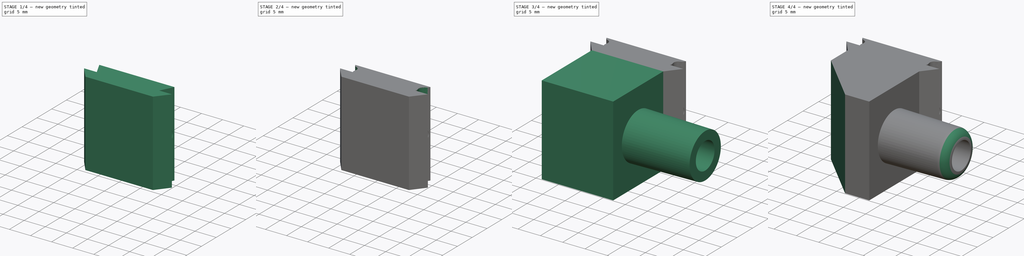
[diagram: build sequence overview — one tinted view per stage of 4, left to right]
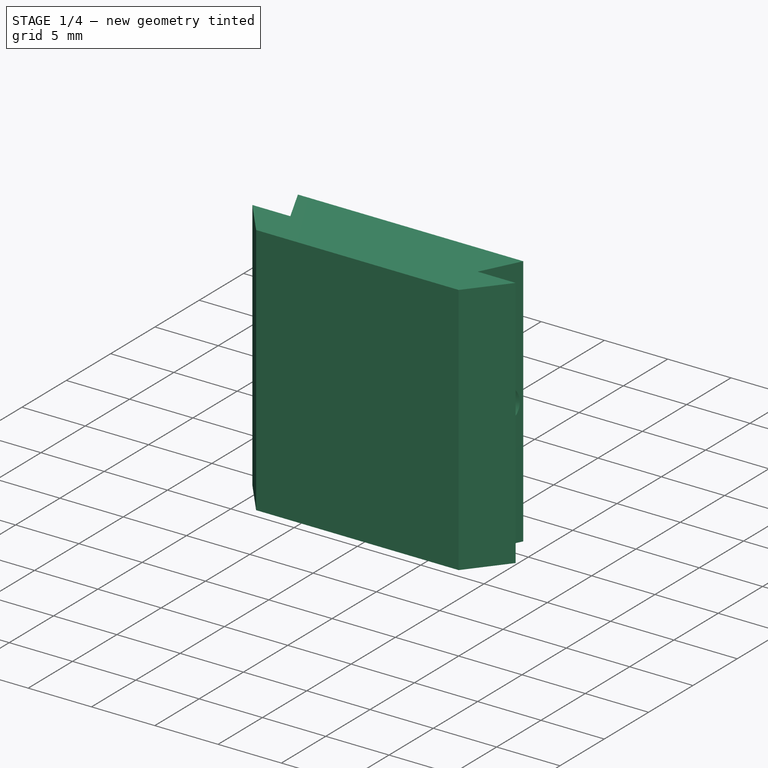
[diagram: stage 1 of 4 — iso view after this stage's code; geometry added in this stage tinted green]
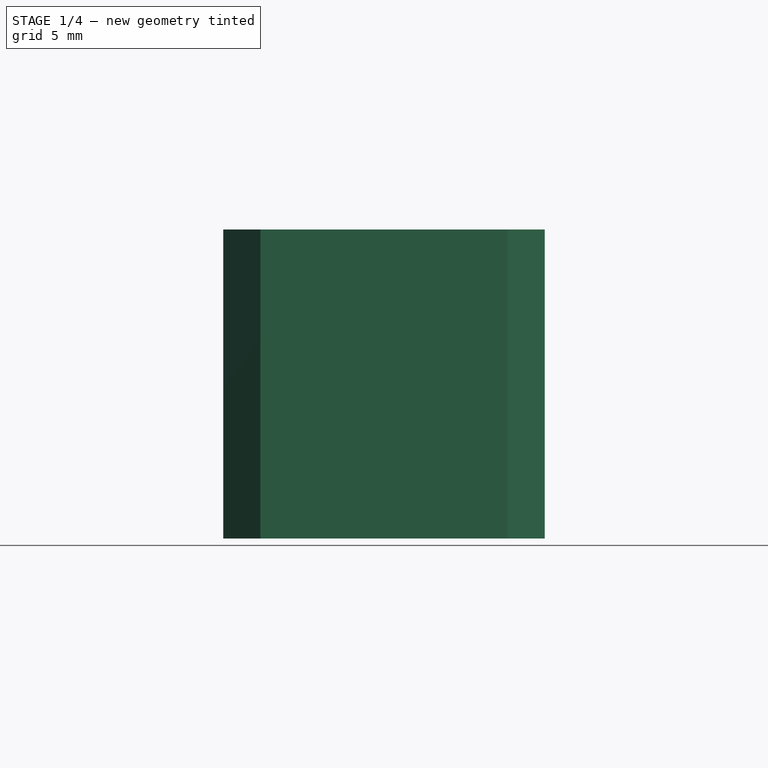
[diagram: stage 1 of 4 — front view after this stage's code; geometry added in this stage tinted green]
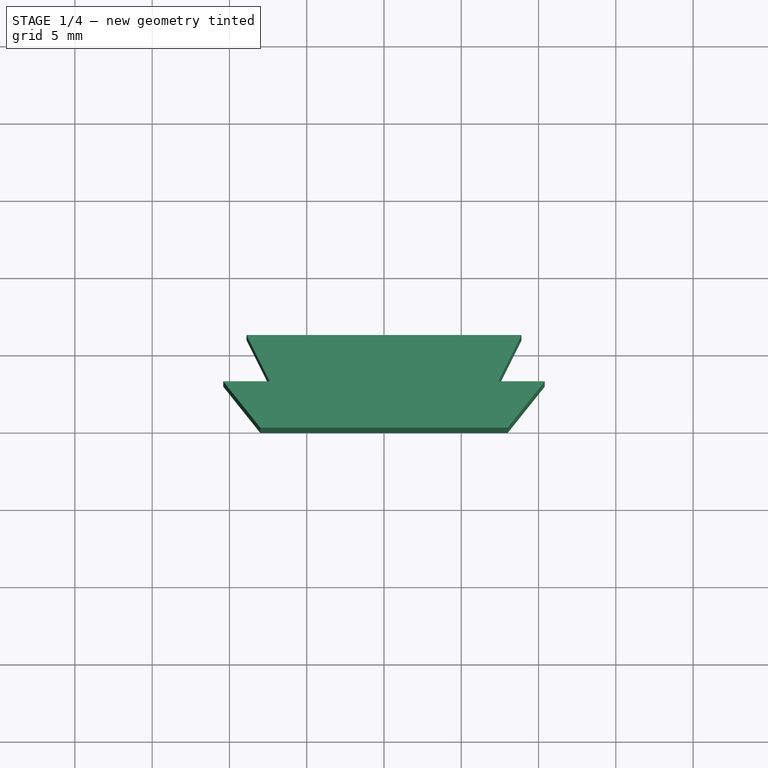
[diagram: stage 1 of 4 — top view after this stage's code; geometry added in this stage tinted green]
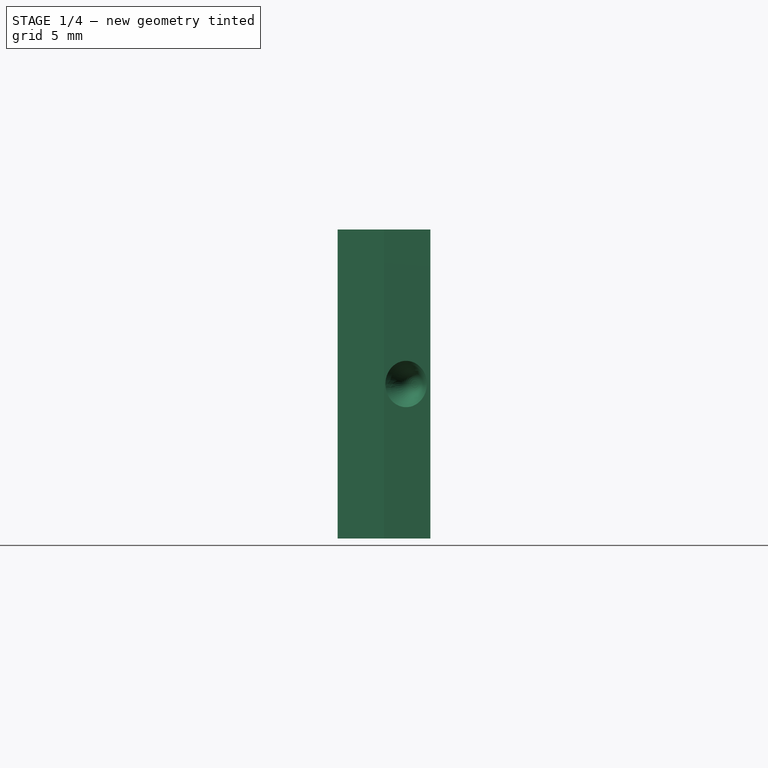
[diagram: stage 1 of 4 — right view after this stage's code; geometry added in this stage tinted green]
FCSTD DOCUMENT  (FreeCAD 0.18R16146 (Git))
Label: V2_Connector_90deg_tube_10mm
License: All rights reserved
LicenseURL: http://en.wikipedia.org/wiki/All_rights_reserved
objects: Sketcher::SketchObject×8, PartDesign::Plane×3, PartDesign::Pad×2, PartDesign::Mirrored×2, PartDesign::Pocket×2, PartDesign::Groove×1, PartDesign::SubtractivePipe×1, PartDesign::Line×1, PartDesign::Revolution×1, PartDesign::Fillet×1, PartDesign::Body×1
note: 30 computed .brp shape members not serialized (recipe doc carries the construction recipe); baked Part::Feature solids carry a one-line shape summary decoded from their .brp

FEATURE [Sketcher::SketchObject] Sketch004
  MapMode = 5
  Support = -> [XY_Plane001]
  sketch-geometry (8):
    g0: LineSegment StartX=-8.9 StartY=3 StartZ=0 EndX=-7.4 EndY=0 EndZ=0
    g1: LineSegment StartX=7.4 StartY=-1e-16 StartZ=0 EndX=8.9 EndY=3 EndZ=0
    g2: LineSegment StartX=8.9 StartY=3 StartZ=0 EndX=-8.9 EndY=3 EndZ=0
    g3: LineSegment StartX=-7.4 StartY=-2e-16 StartZ=0 EndX=-10.4 EndY=-2e-16 EndZ=0
    g4: LineSegment StartX=-10.4 StartY=-2e-16 StartZ=0 EndX=-8 EndY=-3 EndZ=0
    g5: LineSegment StartX=-8 StartY=-3 StartZ=0 EndX=8 EndY=-3 EndZ=0
    g6: LineSegment StartX=8 StartY=-3 StartZ=0 EndX=10.4 EndY=0 EndZ=0
    g7: LineSegment StartX=10.4 StartY=-1e-16 StartZ=0 EndX=7.4 EndY=-1e-16 EndZ=0
  constraints (23):
    c: Coincident(g1,g2)
    c: Coincident(g2,g0)
    c: DistanceX(g2,g2) = 17.8
    c: DistanceX(g0,g1) = 14.8
    c: Equal(g0,g1)
    c: DistanceY(g1,g1) = 3
    c: Symmetric(g0,g1,g-2)
    c: Coincident(g0,g3)
    c: Horizontal(g3)
    c: Coincident(g3,g4)
    c: Coincident(g4,g5)
    c: Horizontal(g5)
    c: Coincident(g5,g6)
    c: Coincident(g6,g7)
    c: Coincident(g7,g1)
    c: Horizontal(g7)
    c: DistanceX(g5,g5) = 16
    c: DistanceY(g4,g0) = 3
    c: DistanceY(g0,g0) = 3
    c: Equal(g6,g4)
    c: Equal(g3,g7)
    c: DistanceX(g3,g3) = 3
    c: DistanceY(g-1,g1) = 3
FEATURE [PartDesign::Pad] Pad001
  Length = 20
  Length2 = 100
  Profile = -> Sketch004
  Type = 0
FEATURE [PartDesign::Plane] DatumPlane002
  AttachmentOffset = pos=(0,10,0) rot=(1,0,0;1.5708rad)
  Length = 51.3037
  MapMode = 5
  Placement = pos=(6.72,-3.36,10) rot=(0.850651,0.525731,0;3.14159rad)
  ResizeMode = 0
  Support = -> [Pad001]
  Width = 52.377
FEATURE [Sketcher::SketchObject] Sketch005
  ExternalGeometry = -> [Pad001]
  MapMode = 5
  Placement = pos=(6.72,-3.36,10) rot=(0.850651,0.525731,0;3.14159rad)
  Support = -> [DatumPlane002]
  sketch-geometry (9):
    g0: LineSegment StartX=1.62053 StartY=-4.4e-15 StartZ=0 EndX=3.12053 EndY=-4.4e-15 EndZ=0
    g1: LineSegment StartX=3.12053 StartY=-4.4e-15 StartZ=0 EndX=3.12053 EndY=-1.3 EndZ=0
    g2-g5: Circle [constr] x4 (B-spline internal-alignment scaffolding for g6; pole/knot coordinates omitted)
    g6: BSplineCurve PolesCount=4 KnotsCount=2 Degree=3 IsPeriodic=0
    g7: GeomPoint [constr] X=3.12053 Y=-1.3 Z=0
    g8: GeomPoint [constr] X=1.62053 Y=-4.4e-15 Z=0
  constraints (20):
    c: Horizontal(g0)
    c: Coincident(g0,g1)
    c: Vertical(g1)
    c: DistanceY(g1,g1) = 1.3
    c: DistanceX(g0,g0) = 1.5
    c: DistanceX(g-3,g0) = 1.6
    c: DistanceY(g0,g-3) = 0
    c: Coincident(g6,g1)
    c: Radius(g2) = 0.1
    c: Equal(g2,g3)
    c: Equal(g2,g4)
    c: Equal(g2,g5)
    c: Coincident(g6,g0)
    c: InternalAlignment(g2-g5 -> g6) x4
    c: InternalAlignment(g7,g6)
    c: InternalAlignment(g8,g6)
    c: Horizontal(g3,g1)
    c: Vertical(g3,g4)
    c: DistanceY(g3,g4) = 0.6
    c: DistanceX(g4,g0) = 0.75
FEATURE [PartDesign::Groove] Groove
  Angle = 360
  Axis = (-0.894427,0.447214,-2e-16)
  Base = (8.11554,-0.568916,10)
  BaseFeature = -> Pad001
  Profile = -> Sketch005
  ReferenceAxis = -> Sketch005 [Edge2]
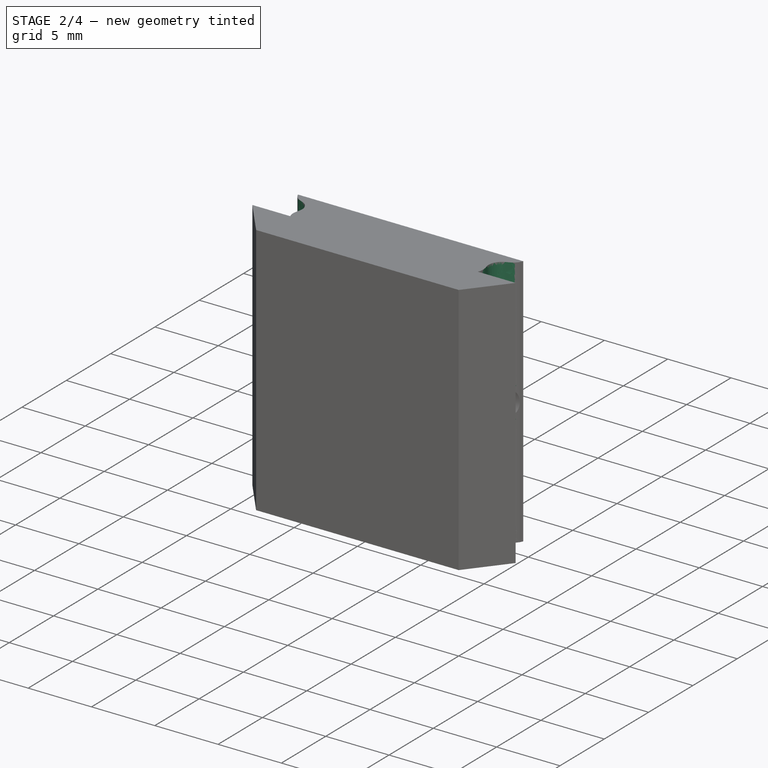
[diagram: stage 2 of 4 — iso view after this stage's code; geometry added in this stage tinted green]
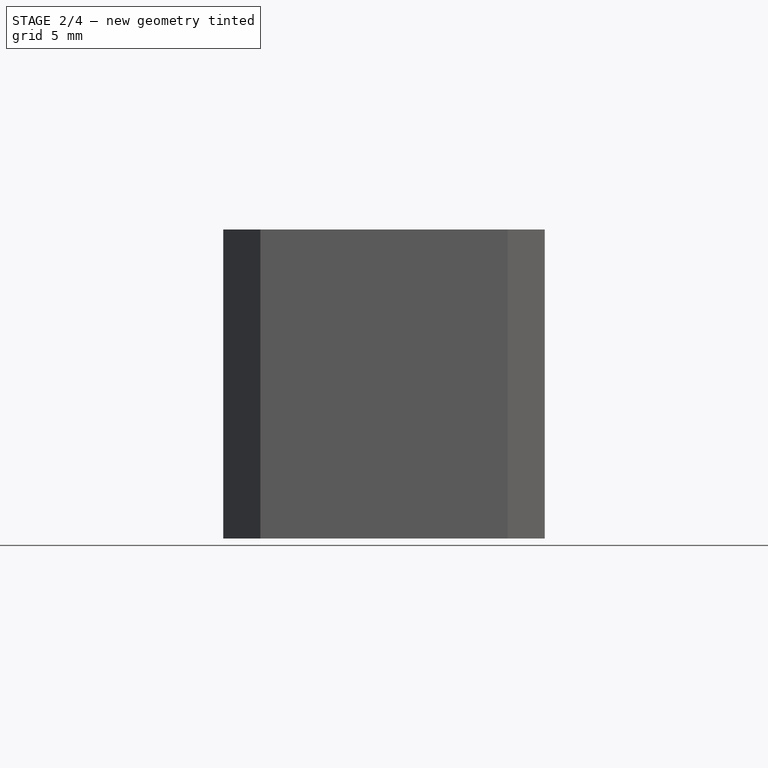
[diagram: stage 2 of 4 — front view after this stage's code; geometry added in this stage tinted green]
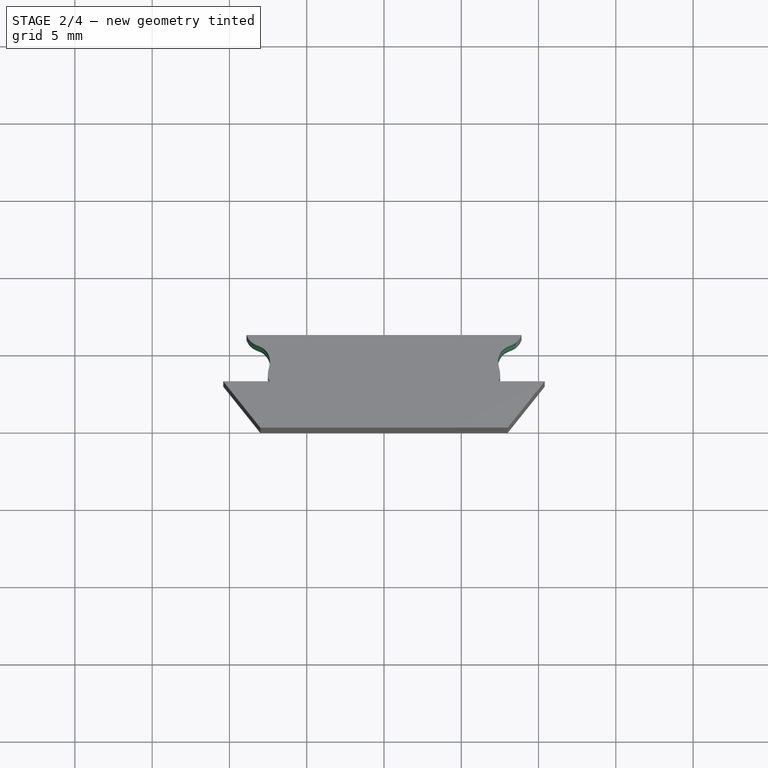
[diagram: stage 2 of 4 — top view after this stage's code; geometry added in this stage tinted green]
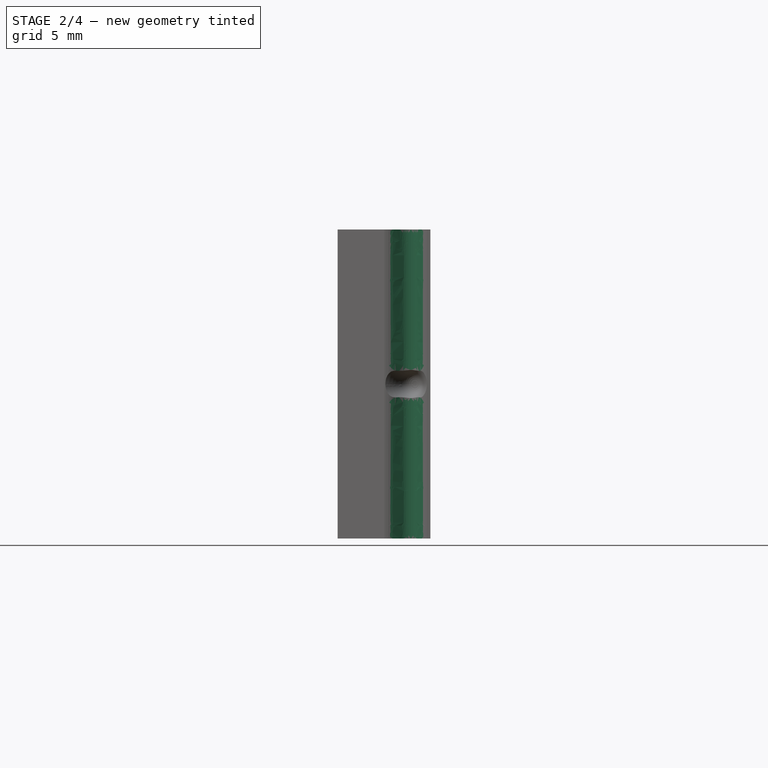
[diagram: stage 2 of 4 — right view after this stage's code; geometry added in this stage tinted green]
FEATURE [PartDesign::Mirrored] Mirrored
  BaseFeature = -> Groove
  MirrorPlane = -> YZ_Plane001
  Originals = -> [Groove]
FEATURE [PartDesign::Plane] DatumPlane003
  AttachmentOffset = pos=(0,0,0) rot=(1,0,0;1.5708rad)
  Length = 51.3037
  MapMode = 5
  Placement = pos=(-6.72,-3.36,0) rot=(0.850651,-0.525731,0;3.14159rad)
  ResizeMode = 0
  Support = -> [Mirrored]
  Width = 52.377
FEATURE [Sketcher::SketchObject] Sketch007
  ExternalGeometry = -> [Mirrored]
  MapMode = 5
  Placement = pos=(-6.72,-3.36,0) rot=(0.850651,-0.525731,0;3.14159rad)
  Support = -> [DatumPlane003]
  sketch-geometry (16):
    g0: LineSegment StartX=-4.62053 StartY=-3.6e-15 StartZ=0 EndX=-3.12053 EndY=-3.6e-15 EndZ=0
    g1: LineSegment StartX=-3.12053 StartY=-3.6e-15 StartZ=0 EndX=-1.62053 EndY=-3.6e-15 EndZ=0
    g2-g5: Circle [constr] x4 (B-spline internal-alignment scaffolding for g6; pole/knot coordinates omitted)
    g6: BSplineCurve PolesCount=4 KnotsCount=2 Degree=3 IsPeriodic=0
    g7: GeomPoint [constr] X=-3.12053 Y=-0.7 Z=0
    g8: GeomPoint [constr] X=-4.62053 Y=-3.6e-15 Z=0
    g9-g12: Circle [constr] x4 (B-spline internal-alignment scaffolding for g13; pole/knot coordinates omitted)
    g13: BSplineCurve PolesCount=4 KnotsCount=2 Degree=3 IsPeriodic=0
    g14: GeomPoint [constr] X=-3.12053 Y=-0.7 Z=0
    g15: GeomPoint [constr] X=-1.62053 Y=-3.6e-15 Z=0
  constraints (34):
    c: Horizontal(g0)
    c: Horizontal(g1)
    c: DistanceY(g6,g0) = 0.7
    c: Radius(g2) = 0.1
    c: Equal(g2,g3)
    c: Equal(g2,g4)
    c: Equal(g2,g5)
    c: Coincident(g6,g0)
    c: InternalAlignment(g2-g5 -> g6) x4
    c: InternalAlignment(g7,g6)
    c: InternalAlignment(g8,g6)
    c: Horizontal(g3,g6)
    c: Vertical(g3,g4)
    c: DistanceY(g3,g4) = 0.6
    c: DistanceX(g4,g0) = 0.75
    c: Radius(g9) = 0.09
    c: Equal(g9,g10)
    c: Equal(g9,g11)
    c: Equal(g9,g12)
    c: Coincident(g13,g1)
    c: InternalAlignment(g9-g12 -> g13) x4
    c: InternalAlignment(g14,g13)
    c: InternalAlignment(g15,g13)
    c: Horizontal(g6,g10)
    c: Vertical(g11,g10)
    c: Horizontal(g11,g4)
    c: DistanceX(g0,g11) = 0.75
    c: DistanceX(g0,g-3) = 1.6
    c: DistanceY(g-3,g0) = 0
    c: Coincident(g6,g13)
    c: DistanceX(g0,g0) = 1.5
    c: Equal(g0,g1)
    c: DistanceX(g0,g6) = 1.5
    c: Coincident(g1,g0)
FEATURE [PartDesign::Pocket] Pocket001
  BaseFeature = -> Mirrored
  Length = 5
  Length2 = 100
  Profile = -> Sketch007
  Type = 1
FEATURE [PartDesign::Mirrored] Mirrored003
  BaseFeature = -> Pocket001
  MirrorPlane = -> YZ_Plane001
  Originals = -> [Pocket001]
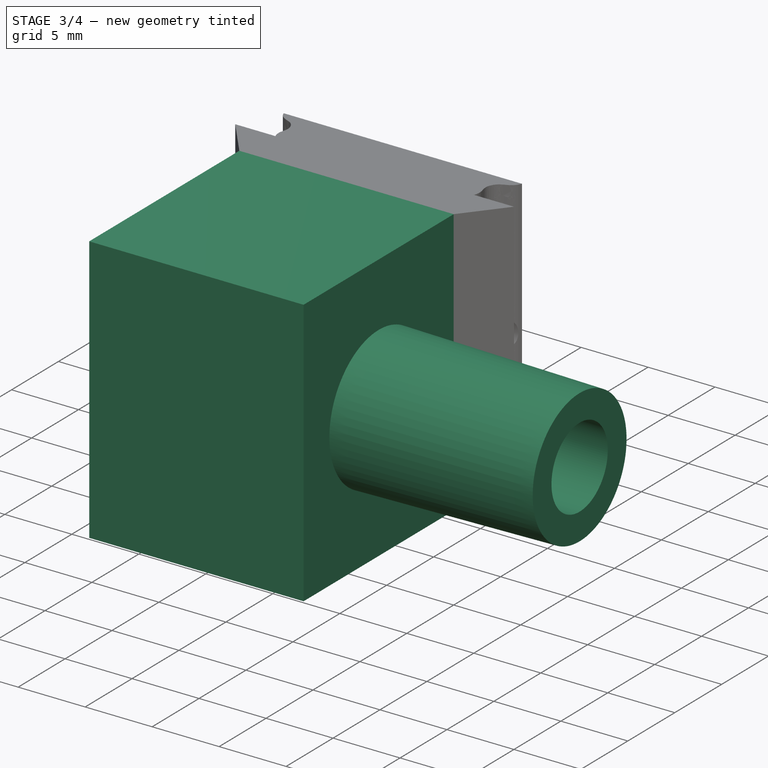
[diagram: stage 3 of 4 — iso view after this stage's code; geometry added in this stage tinted green]
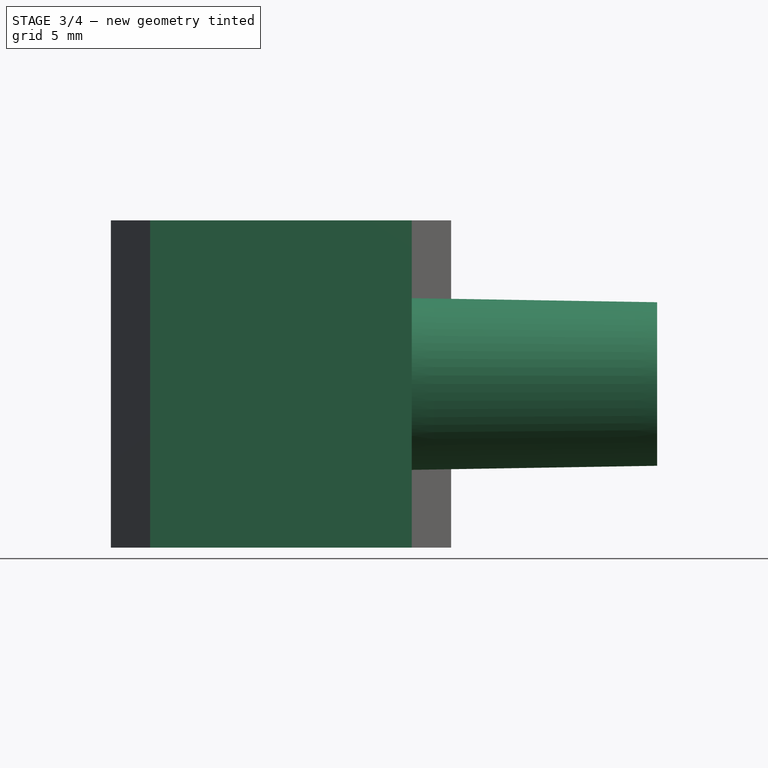
[diagram: stage 3 of 4 — front view after this stage's code; geometry added in this stage tinted green]
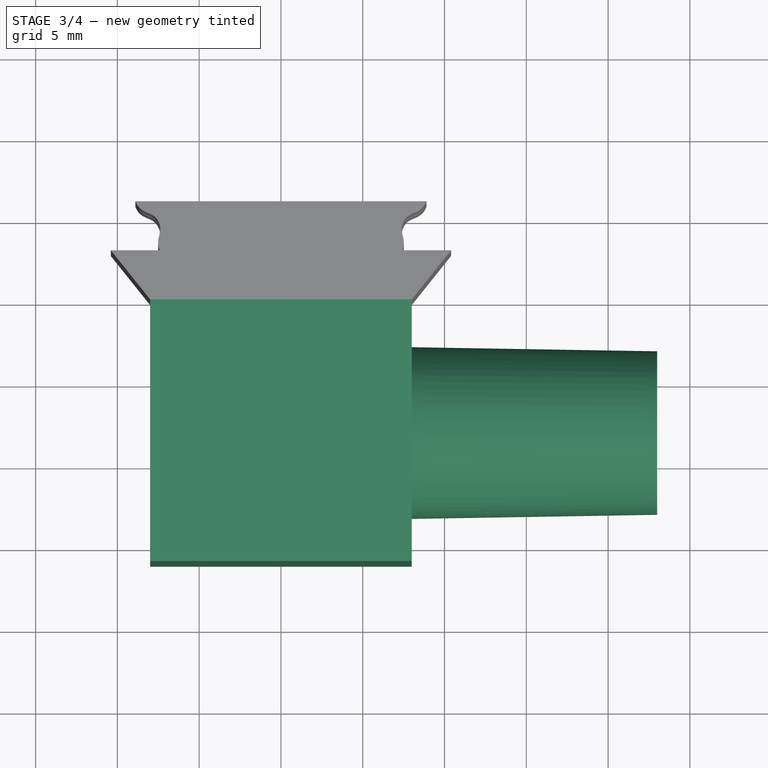
[diagram: stage 3 of 4 — top view after this stage's code; geometry added in this stage tinted green]
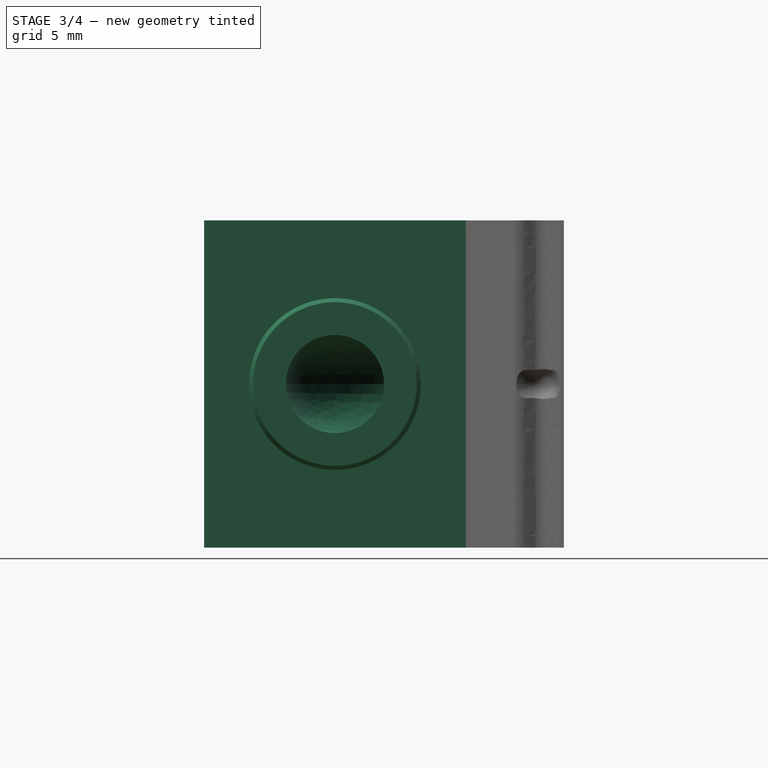
[diagram: stage 3 of 4 — right view after this stage's code; geometry added in this stage tinted green]
FEATURE [PartDesign::Pad] Pad002
  BaseFeature = -> Mirrored003
  Length = 16
  Length2 = 100
  Profile = -> Mirrored003 [Face13]
  Type = 0
FEATURE [Sketcher::SketchObject] Sketch008
  MapMode = 5
  Placement = pos=(0,1,0) rot=(0,0.707107,0.707107;3.14159rad)
  Support = -> [Pad002]
  sketch-geometry (1):
    g0: Circle CenterX=0 CenterY=10 CenterZ=0 NormalX=0 NormalY=0 NormalZ=1 AngleXU=0 Radius=5
  constraints (3):
    c: Radius(g0) = 5
    c: PointOnObject(g0,g-2)
    c: DistanceY(g0) = 10
FEATURE [Sketcher::SketchObject] Sketch009
  MapMode = 5
  Placement = pos=(8,0,0) rot=(0.57735,0.57735,0.57735;2.0944rad)
  Support = -> [Pad002]
  sketch-geometry (1):
    g0: Circle CenterX=-13 CenterY=10 CenterZ=0 NormalX=0 NormalY=0 NormalZ=1 AngleXU=0 Radius=3
  constraints (3):
    c: Radius(g0) = 3
    c: DistanceY(g-1,g0) = 10
    c: DistanceX(g0,g-1) = 13
FEATURE [Sketcher::SketchObject] Sketch010
  MapMode = 5
  Placement = pos=(0,0,20) rot=(0,0,1;0rad)
  Support = -> [Pad002]
  sketch-geometry (2):
    g0: ArcOfCircle CenterX=8 CenterY=-5 CenterZ=0 NormalX=0 NormalY=0 NormalZ=1 AngleXU=0 Radius=8 StartAngle=3.14159 EndAngle=4.71239
    g1: LineSegment StartX=0 StartY=-5 StartZ=0 EndX=0 EndY=1 EndZ=0
  constraints (8):
    c: Coincident(g1,g0)
    c: DistanceY(g0,g-1) = 5
    c: PointOnObject(g1,g-2)
    c: Vertical(g1)
    c: DistanceY(g-1,g1) = 1
    c: DistanceY(g1,g1) = 6
    c: DistanceY(g0,g0) = 8
    c: DistanceX(g0) = 8
FEATURE [PartDesign::SubtractivePipe] SubtractivePipe
  AuxilleryCurvelinear = true
  AuxillerySpineTangent = false
  BaseFeature = -> Pad002
  Binormal = (0,0,0)
  Mode = 0
  Profile = -> Sketch008
  Sections = -> [Sketch009]
  Spine = -> Sketch010
  SpineTangent = false
  Transformation = 1
  Transition = 0
FEATURE [PartDesign::Plane] DatumPlane004
  AttachmentOffset = pos=(0,10,0) rot=(1,0,0;1.5708rad)
  Length = 37.4355
  MapMode = 5
  Placement = pos=(8,0,10) rot=(0.707107,0.707107,0;3.14159rad)
  ResizeMode = 0
  Support = -> [SubtractivePipe]
  Width = 39.8355
FEATURE [Sketcher::SketchObject] Sketch011
  MapMode = 5
  Placement = pos=(8,0,10) rot=(0.707107,0.707107,0;3.14159rad)
  Support = -> [DatumPlane004]
  sketch-geometry (4):
    g0: LineSegment StartX=-18.25 StartY=0 StartZ=0 EndX=-16 EndY=0 EndZ=0
    g1: LineSegment StartX=-16 StartY=0 StartZ=0 EndX=-16 EndY=15 EndZ=0
    g2: LineSegment StartX=-16 StartY=15 StartZ=0 EndX=-18 EndY=15 EndZ=0
    g3: LineSegment StartX=-18 StartY=15 StartZ=0 EndX=-18.25 EndY=0 EndZ=0
  constraints (12):
    c: Coincident(g0,g1)
    c: Coincident(g1,g2)
    c: Coincident(g2,g3)
    c: Coincident(g3,g0)
    c: Horizontal(g0)
    c: Horizontal(g2)
    c: DistanceX(g0,g0) = 2.25
    c: Vertical(g1)
    c: DistanceX(g2,g2) = 2
    c: DistanceY(g1,g1) = 15
    c: DistanceX(g0) = -16
    c: DistanceY(g0) = 0
FEATURE [PartDesign::Line] DatumLine
  AttacherType = Attacher::AttachEngineLine
  AttachmentOffset = pos=(0,0,-13) rot=(0,1,0;1.5708rad)
  MapMode = 16
  Placement = pos=(8,-13,10) rot=(-0.57735,0.57735,-0.57735;2.0944rad)
  Support = -> [DatumPlane004]
FEATURE [PartDesign::Revolution] Revolution001
  Angle = 360
  Axis = (1,2e-16,2e-16)
  Base = (8,-13,10)
  BaseFeature = -> SubtractivePipe
  Profile = -> Sketch011
  ReferenceAxis = -> DatumLine
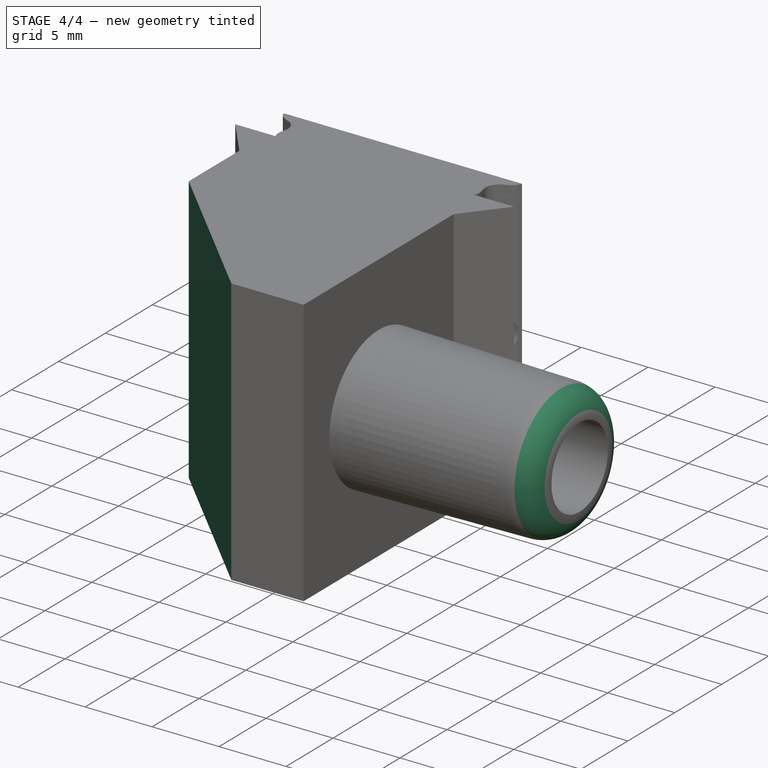
[diagram: stage 4 of 4 — iso view after this stage's code; geometry added in this stage tinted green]
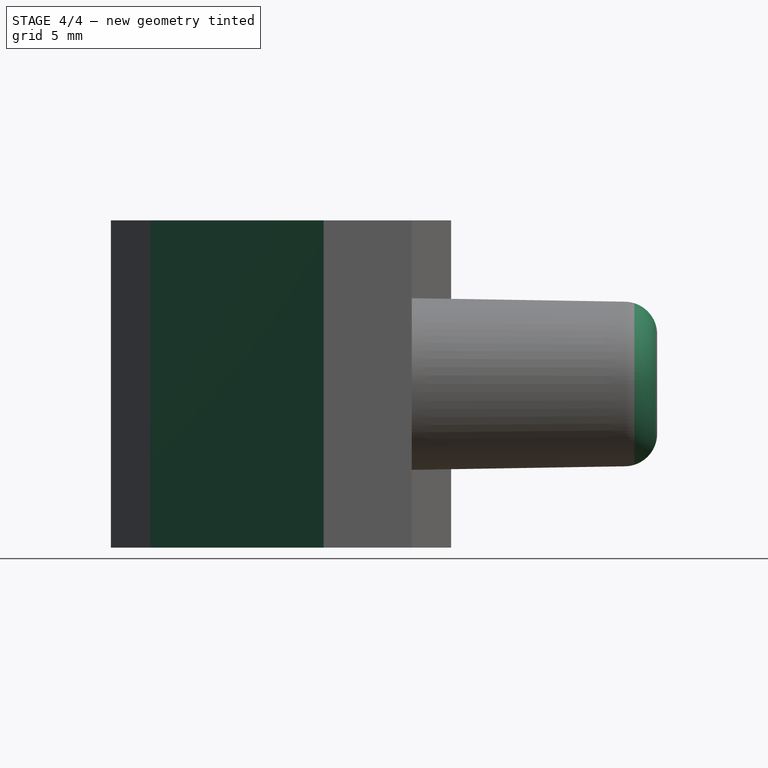
[diagram: stage 4 of 4 — front view after this stage's code; geometry added in this stage tinted green]
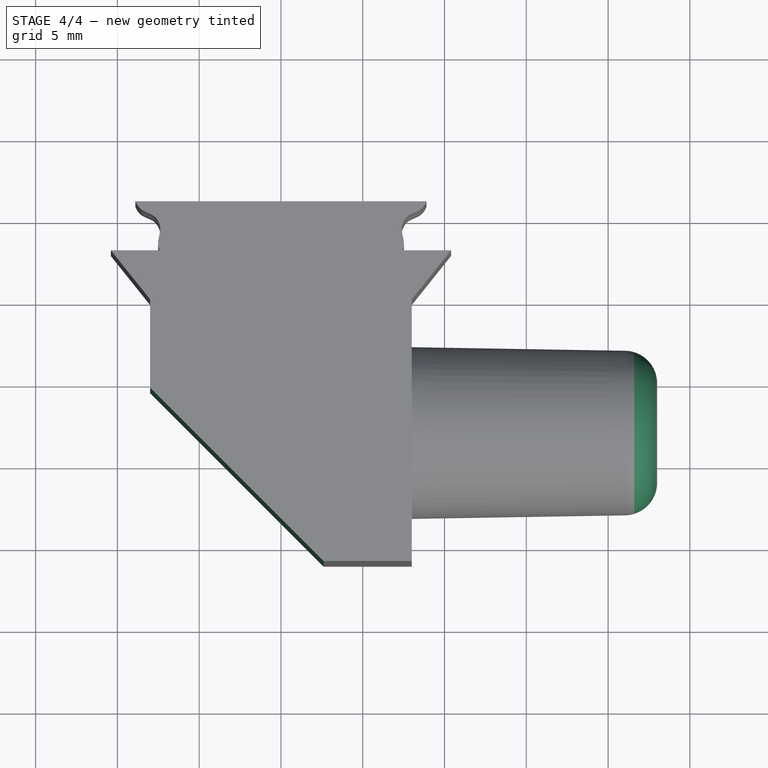
[diagram: stage 4 of 4 — top view after this stage's code; geometry added in this stage tinted green]
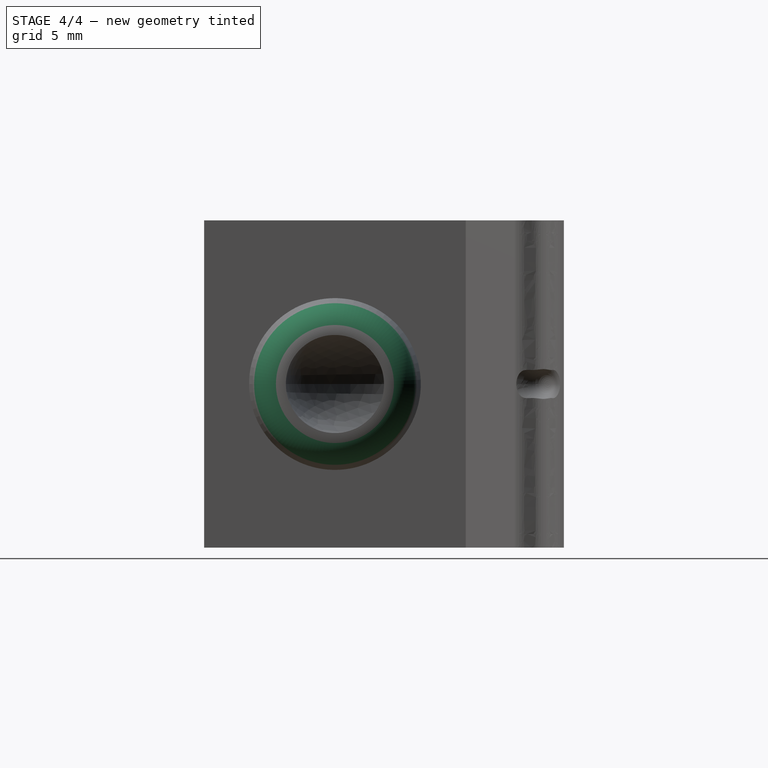
[diagram: stage 4 of 4 — right view after this stage's code; geometry added in this stage tinted green]
FEATURE [PartDesign::Fillet] Fillet
  Base = -> Revolution001 [Edge81]
  BaseFeature = -> Revolution001
  Radius = 2
FEATURE [Sketcher::SketchObject] Sketch012
  MapMode = 5
  Placement = pos=(0,0,20) rot=(0,0,1;0rad)
  Support = -> [Fillet]
  sketch-geometry (3):
    g0: LineSegment StartX=-8 StartY=-10.3934 StartZ=0 EndX=-8 EndY=-21 EndZ=0
    g1: LineSegment StartX=-8 StartY=-21 StartZ=0 EndX=2.6066 EndY=-21 EndZ=0
    g2: LineSegment StartX=2.6066 StartY=-21 StartZ=0 EndX=-8 EndY=-10.3934 EndZ=0
  constraints (9):
    c: Coincident(g0,g1)
    c: Coincident(g1,g2)
    c: Coincident(g2,g0)
    c: Perpendicular(g0,g1)
    c: Horizontal(g1)
    c: Distance(g2) = 15
    c: Equal(g0,g1)
    c: DistanceY(g0) = -21
    c: DistanceX(g0) = -8
FEATURE [PartDesign::Pocket] Pocket002
  BaseFeature = -> Fillet
  Length = 5
  Length2 = 100
  Profile = -> Sketch012
  Type = 2
FEATURE [PartDesign::Body] Body001  label="Connector"
  Group = -> [Sketch004,Pad001,DatumPlane002,Sketch005,Groove,Mirrored,DatumPlane003,Sketch007,Pocket001,Mirrored003,Pad002,Sketch008,Sketch009,Sketch010,SubtractivePipe,DatumPlane004,Sketch011,DatumLine,Revolution001,Fillet,Sketch012,Pocket002]
  Origin = -> Origin001
  Tip = -> Pocket002
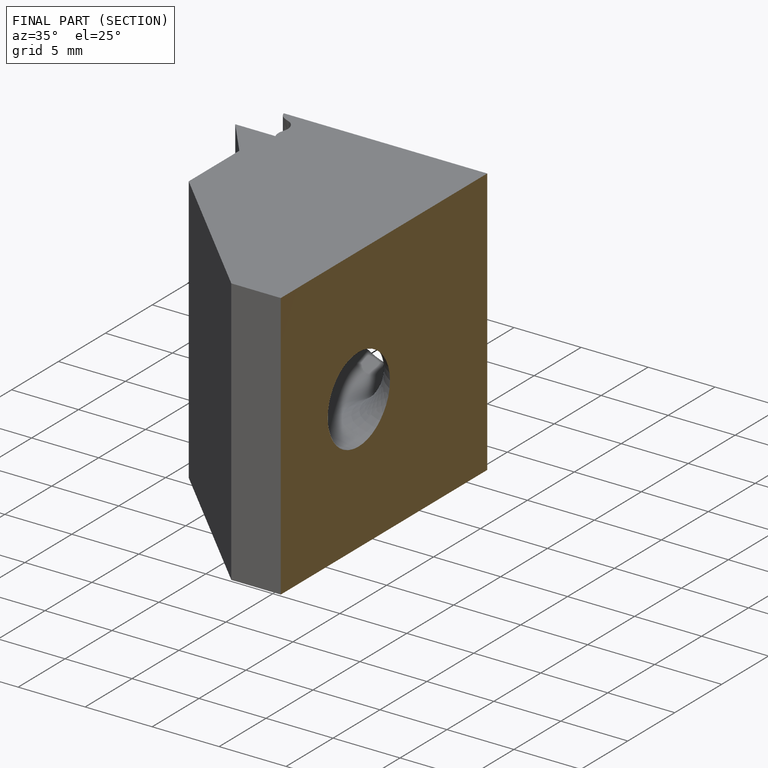
[diagram: finished part — half-section view (interior)]
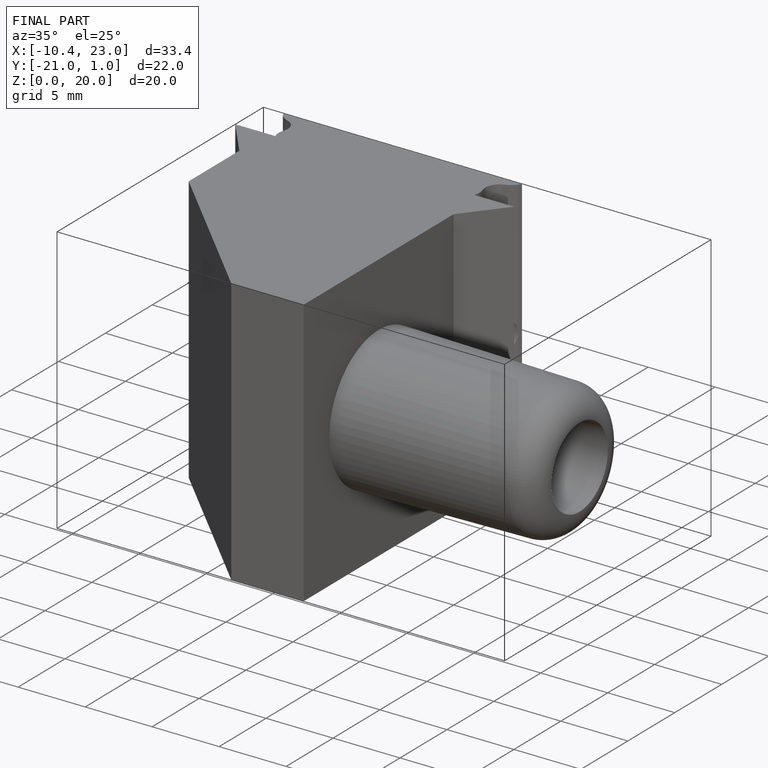
[diagram: finished part — iso view with bounding-box wireframe]
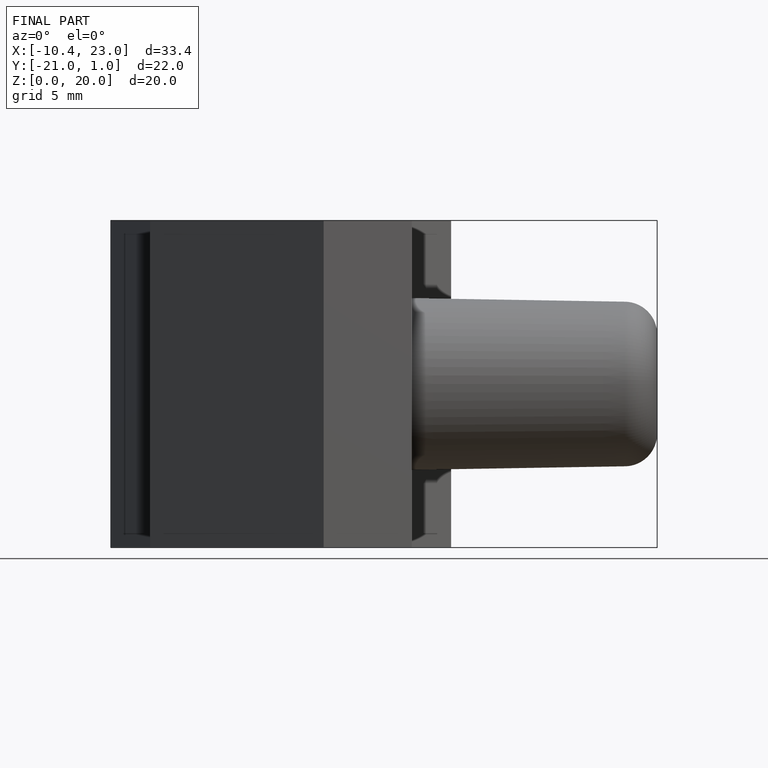
[diagram: finished part — front view with bounding-box wireframe]
